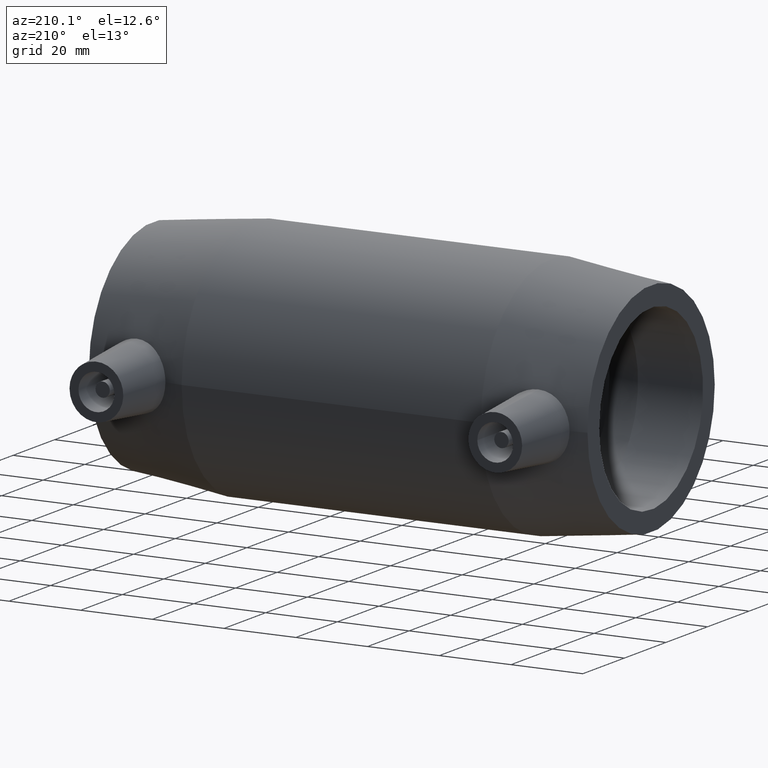
[diagram: clean part render]
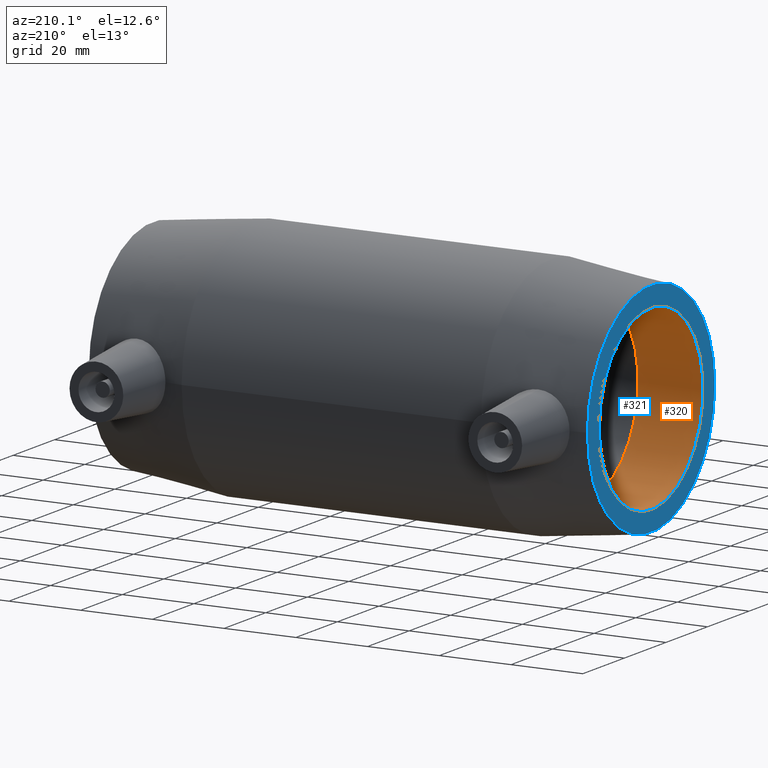
[diagram: same view with the hole feature highlighted: cylindrical wall and planar end face, labeled with their STEP entity ids]
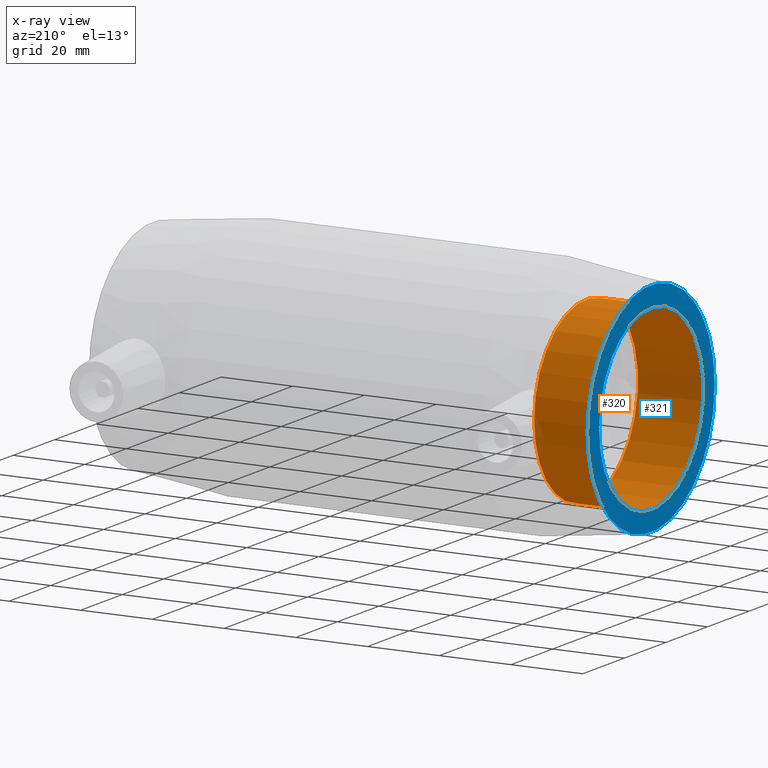
[diagram: x-ray of the same camera — body ghosted, the hole faces saturated]
A machine part, auxiliary view. The highlighted faces form one hole feature of diameter 50 mm: the cylindrical wall (entity #320, orange) and its adjacent planar end face (entity #321, blue) — they share a circular edge in the B-rep.
The next image is the same camera in x-ray (body ghosted, the hole faces saturated) — the bore reads through the body.
Wall:
#47=FACE_BOUND('',#139,.T.);
#60=CYLINDRICAL_SURFACE('',#374,25.);
#86=FACE_OUTER_BOUND('',#138,.T.);
#138=EDGE_LOOP('',(#276));
#139=EDGE_LOOP('',(#277));
#168=CIRCLE('',#373,25.);
#169=CIRCLE('',#375,25.);
#196=VERTEX_POINT('',#631);
#197=VERTEX_POINT('',#634);
#224=EDGE_CURVE('',#196,#196,#168,.T.);
#225=EDGE_CURVE('',#197,#197,#169,.T.);
#276=ORIENTED_EDGE('',*,*,#225,.F.);
#277=ORIENTED_EDGE('',*,*,#224,.T.);
#320=ADVANCED_FACE('',(#86,#47),#60,.F.);
#373=AXIS2_PLACEMENT_3D('',#632,#477,#478);
#374=AXIS2_PLACEMENT_3D('',#633,#479,#480);
#375=AXIS2_PLACEMENT_3D('',#635,#481,#482);
#477=DIRECTION('center_axis',(1.,0.,0.));
#478=DIRECTION('ref_axis',(0.,0.,-1.));
#479=DIRECTION('center_axis',(1.,0.,0.));
#480=DIRECTION('ref_axis',(0.,1.,0.));
#481=DIRECTION('center_axis',(1.,0.,0.));
#482=DIRECTION('ref_axis',(0.,0.,-1.));
#631=CARTESIAN_POINT('',(-51.3666666666667,25.,0.));
#632=CARTESIAN_POINT('Origin',(-51.3666666666667,0.,0.));
#633=CARTESIAN_POINT('Origin',(-60.4333333333333,0.,0.));
#634=CARTESIAN_POINT('',(-69.5,25.,0.));
#635=CARTESIAN_POINT('Origin',(-69.5,0.,0.));
End face:
#48=FACE_BOUND('',#141,.T.);
#87=FACE_OUTER_BOUND('',#140,.T.);
#140=EDGE_LOOP('',(#278));
#141=EDGE_LOOP('',(#279));
#169=CIRCLE('',#375,25.);
#170=CIRCLE('',#377,30.6);
#197=VERTEX_POINT('',#634);
#198=VERTEX_POINT('',#637);
#225=EDGE_CURVE('',#197,#197,#169,.T.);
#226=EDGE_CURVE('',#198,#198,#170,.T.);
#278=ORIENTED_EDGE('',*,*,#226,.F.);
#279=ORIENTED_EDGE('',*,*,#225,.T.);
#294=PLANE('',#376);
#321=ADVANCED_FACE('',(#87,#48),#294,.T.);
#375=AXIS2_PLACEMENT_3D('',#635,#481,#482);
#376=AXIS2_PLACEMENT_3D('',#636,#483,#484);
#377=AXIS2_PLACEMENT_3D('',#638,#485,#486);
#481=DIRECTION('center_axis',(1.,0.,0.));
#482=DIRECTION('ref_axis',(0.,0.,-1.));
#483=DIRECTION('center_axis',(-1.,0.,0.));
#484=DIRECTION('ref_axis',(0.,0.,1.));
#485=DIRECTION('center_axis',(1.,0.,0.));
#486=DIRECTION('ref_axis',(0.,0.,-1.));
#634=CARTESIAN_POINT('',(-69.5,25.,0.));
#635=CARTESIAN_POINT('Origin',(-69.5,0.,0.));
#636=CARTESIAN_POINT('Origin',(-69.5,30.6,0.));
#637=CARTESIAN_POINT('',(-69.5,30.6,0.));
#638=CARTESIAN_POINT('Origin',(-69.5,0.,0.));